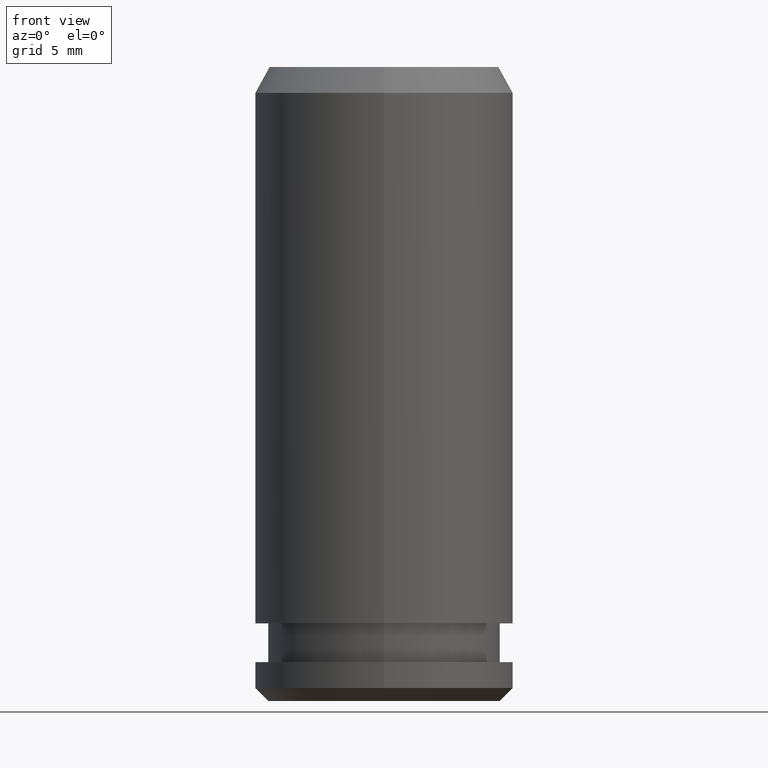
[diagram: clean part render]
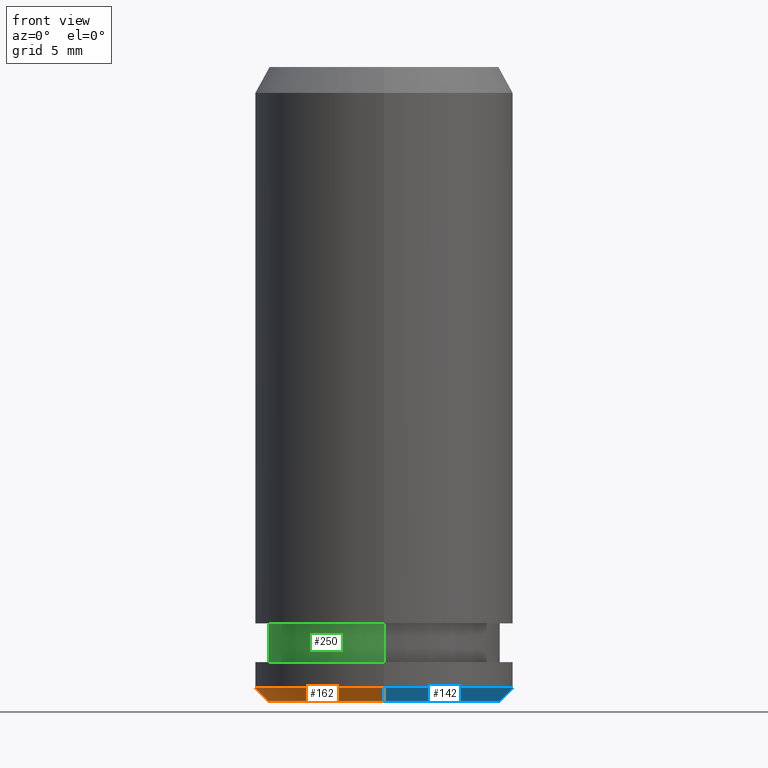
[diagram: same view with three faces highlighted in distinct colors, each labeled with its STEP entity id]
A machine part, front view with three faces highlighted in distinct colors.
Their STEP definitions:

[orange] entity #162 — the highlighted conical surface has half-angle 45 deg.
#108=EDGE_CURVE('NONE',#168,#130,#277,.T.);
#130=VERTEX_POINT('NONE',#301);
#132=VERTEX_POINT('NONE',#303);
#162=ADVANCED_FACE('NONE',(#337),#338,.T.);
#168=VERTEX_POINT('NONE',#344);
#174=EDGE_CURVE('NONE',#218,#168,#352,.T.);
#210=EDGE_CURVE('NONE',#132,#130,#394,.T.);
#218=VERTEX_POINT('NONE',#405);
#228=EDGE_CURVE('NONE',#218,#132,#417,.T.);
#277=CIRCLE('',#462,5.0);
#301=CARTESIAN_POINT('',(0.0,5.0,0.5));
#303=CARTESIAN_POINT('',(0.0,4.5,0.0));
#337=FACE_OUTER_BOUND('',#540,.T.);
#338=CONICAL_SURFACE('',#541,4.5,0.785398163397447);
#344=CARTESIAN_POINT('',(-6.12303176911189E-016,-5.0,0.5));
#352=LINE('',#556,#557);
#394=LINE('',#613,#614);
#405=CARTESIAN_POINT('',(-5.81688018065629E-016,-4.5,0.0));
#417=CIRCLE('',#639,4.5);
#462=AXIS2_PLACEMENT_3D('',#678,#679,#680);
#540=EDGE_LOOP('',(#743,#744,#745,#746));
#541=AXIS2_PLACEMENT_3D('',#747,#748,#749);
#556=CARTESIAN_POINT('',(-5.5107285922007E-016,-4.5,0.0));
#557=VECTOR('',#766,1000.0);
#613=CARTESIAN_POINT('',(0.0,4.5,0.0));
#614=VECTOR('',#831,1000.0);
#639=AXIS2_PLACEMENT_3D('',#867,#868,#869);
#678=CARTESIAN_POINT('',(0.0,0.0,0.5));
#679=DIRECTION('',(0.0,0.0,-1.0));
#680=DIRECTION('',(0.0,-1.0,0.0));
#743=ORIENTED_EDGE('',*,*,#228,.F.);
#744=ORIENTED_EDGE('',*,*,#174,.T.);
#745=ORIENTED_EDGE('',*,*,#108,.T.);
#746=ORIENTED_EDGE('',*,*,#210,.F.);
#747=CARTESIAN_POINT('',(0.0,0.0,0.0));
#748=DIRECTION('',(-0.0,-0.0,1.0));
#749=DIRECTION('',(0.0,1.0,0.0));
#766=DIRECTION('',(-8.65927457071935E-017,-0.707106781186547,0.707106781186548));
#831=DIRECTION('',(0.0,0.707106781186547,0.707106781186548));
#867=CARTESIAN_POINT('',(0.0,0.0,0.0));
#868=DIRECTION('',(0.0,0.0,-1.0));
#869=DIRECTION('',(0.0,-1.0,0.0));

[blue] entity #142 — the highlighted conical surface has half-angle 45 deg.
#102=EDGE_CURVE('NONE',#132,#218,#271,.T.);
#130=VERTEX_POINT('NONE',#301);
#132=VERTEX_POINT('NONE',#303);
#142=ADVANCED_FACE('NONE',(#313),#314,.T.);
#146=EDGE_CURVE('NONE',#130,#168,#318,.T.);
#168=VERTEX_POINT('NONE',#344);
#174=EDGE_CURVE('NONE',#218,#168,#352,.T.);
#210=EDGE_CURVE('NONE',#132,#130,#394,.T.);
#218=VERTEX_POINT('NONE',#405);
#271=CIRCLE('',#453,4.5);
#301=CARTESIAN_POINT('',(0.0,5.0,0.5));
#303=CARTESIAN_POINT('',(0.0,4.5,0.0));
#313=FACE_OUTER_BOUND('',#508,.T.);
#314=CONICAL_SURFACE('',#509,4.5,0.785398163397447);
#318=CIRCLE('',#515,5.0);
#344=CARTESIAN_POINT('',(-6.12303176911189E-016,-5.0,0.5));
#352=LINE('',#556,#557);
#394=LINE('',#613,#614);
#405=CARTESIAN_POINT('',(-5.81688018065629E-016,-4.5,0.0));
#453=AXIS2_PLACEMENT_3D('',#674,#675,#676);
#508=EDGE_LOOP('',(#705,#706,#707,#708));
#509=AXIS2_PLACEMENT_3D('',#709,#710,#711);
#515=AXIS2_PLACEMENT_3D('',#715,#716,#717);
#556=CARTESIAN_POINT('',(-5.5107285922007E-016,-4.5,0.0));
#557=VECTOR('',#766,1000.0);
#613=CARTESIAN_POINT('',(0.0,4.5,0.0));
#614=VECTOR('',#831,1000.0);
#674=CARTESIAN_POINT('',(0.0,0.0,0.0));
#675=DIRECTION('',(0.0,0.0,-1.0));
#676=DIRECTION('',(0.0,-1.0,0.0));
#705=ORIENTED_EDGE('',*,*,#174,.F.);
#706=ORIENTED_EDGE('',*,*,#102,.F.);
#707=ORIENTED_EDGE('',*,*,#210,.T.);
#708=ORIENTED_EDGE('',*,*,#146,.T.);
#709=CARTESIAN_POINT('',(0.0,0.0,0.0));
#710=DIRECTION('',(-0.0,-0.0,1.0));
#711=DIRECTION('',(0.0,1.0,0.0));
#715=CARTESIAN_POINT('',(0.0,0.0,0.5));
#716=DIRECTION('',(0.0,0.0,-1.0));
#717=DIRECTION('',(0.0,-1.0,0.0));
#766=DIRECTION('',(-8.65927457071935E-017,-0.707106781186547,0.707106781186548));
#831=DIRECTION('',(0.0,0.707106781186547,0.707106781186548));

[green] entity #250 — the highlighted cylindrical surface (partial cylindrical patch) has radius 4.5 mm, axis along (0, -0, -1).
#100=VERTEX_POINT('NONE',#269);
#150=EDGE_CURVE('NONE',#100,#164,#322,.T.);
#154=VERTEX_POINT('NONE',#328);
#164=VERTEX_POINT('NONE',#340);
#188=EDGE_CURVE('NONE',#242,#164,#368,.T.);
#202=EDGE_CURVE('NONE',#154,#100,#385,.T.);
#242=VERTEX_POINT('NONE',#432);
#246=EDGE_CURVE('NONE',#154,#242,#436,.T.);
#250=ADVANCED_FACE('NONE',(#440),#441,.T.);
#269=CARTESIAN_POINT('',(-5.5107285922007E-016,4.5,3.0));
#322=LINE('',#521,#522);
#328=CARTESIAN_POINT('',(0.0,-4.5,3.0));
#340=CARTESIAN_POINT('',(-5.5107285922007E-016,4.5,1.5));
#368=CIRCLE('',#579,4.5);
#385=CIRCLE('',#600,4.5);
#432=CARTESIAN_POINT('',(0.0,-4.5,1.5));
#436=LINE('',#665,#666);
#440=FACE_OUTER_BOUND('',#671,.T.);
#441=CYLINDRICAL_SURFACE('',#672,4.5);
#521=CARTESIAN_POINT('',(-5.5107285922007E-016,4.5,-1.13644490972339));
#522=VECTOR('',#721,1000.0);
#579=AXIS2_PLACEMENT_3D('',#788,#789,#790);
#600=AXIS2_PLACEMENT_3D('',#816,#817,#818);
#665=CARTESIAN_POINT('',(0.0,-4.5,-1.13644490972339));
#666=VECTOR('',#886,1000.0);
#671=EDGE_LOOP('',(#891,#892,#893,#894));
#672=AXIS2_PLACEMENT_3D('',#895,#896,#897);
#721=DIRECTION('',(0.0,0.0,-1.0));
#788=CARTESIAN_POINT('',(0.0,0.0,1.5));
#789=DIRECTION('',(0.0,0.0,-1.0));
#790=DIRECTION('',(0.0,-1.0,0.0));
#816=CARTESIAN_POINT('',(0.0,0.0,3.0));
#817=DIRECTION('',(0.0,0.0,-1.0));
#818=DIRECTION('',(0.0,-1.0,0.0));
#886=DIRECTION('',(0.0,0.0,-1.0));
#891=ORIENTED_EDGE('',*,*,#202,.T.);
#892=ORIENTED_EDGE('',*,*,#150,.T.);
#893=ORIENTED_EDGE('',*,*,#188,.F.);
#894=ORIENTED_EDGE('',*,*,#246,.F.);
#895=CARTESIAN_POINT('',(0.0,0.0,-1.13644490972339));
#896=DIRECTION('',(0.0,-0.0,-1.0));
#897=DIRECTION('',(0.0,-1.0,0.0));